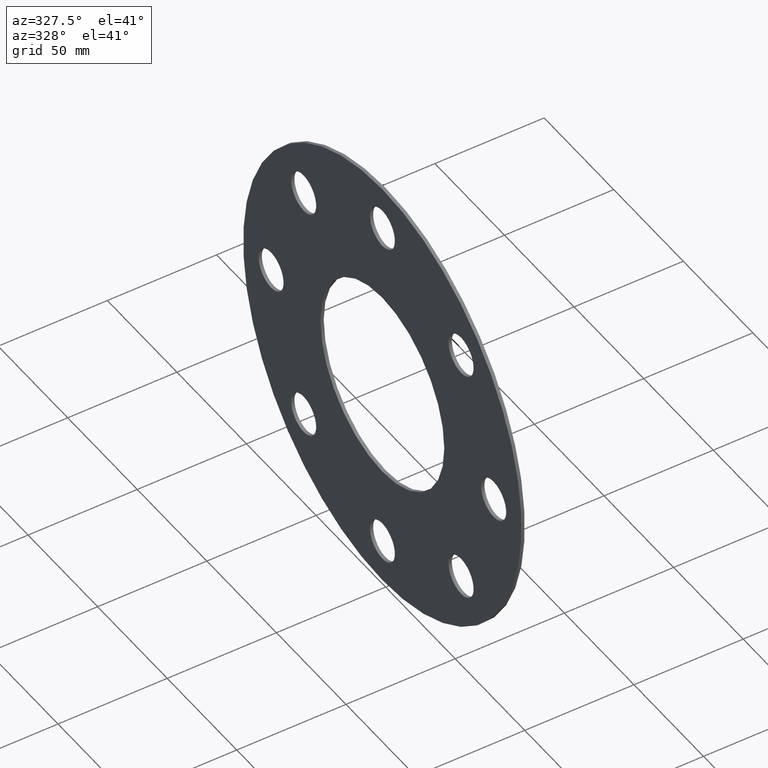
[diagram: clean part render]
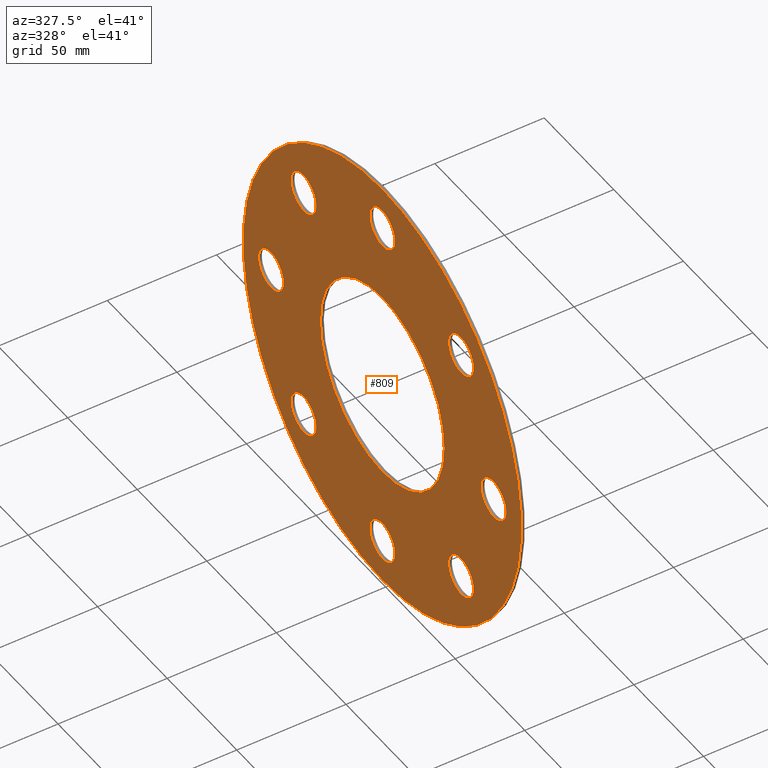
[diagram: same view with one face highlighted and labeled with its STEP entity id]
A machine part, auxiliary view. The second image highlights one B-rep face of the part: STEP entity #809.
In plain terms, the highlighted planar face has unit normal (1, 0, 0).
Its self-contained STEP definition (entity closure, byte-faithful):
#1 = ORIENTED_EDGE ( 'NONE', *, *, #417, .T. ) ;
#6 = EDGE_LOOP ( 'NONE', ( #812, #153 ) ) ;
#10 = CARTESIAN_POINT ( 'NONE',  ( -1.500000000000000000, -1.466548965701370020E-13, 89.00000000000000000 ) ) ;
#12 = EDGE_LOOP ( 'NONE', ( #265, #438 ) ) ;
#13 = EDGE_CURVE ( 'NONE', #336, #109, #191, .T. ) ;
#35 = AXIS2_PLACEMENT_3D ( 'NONE', #96, #411, #406 ) ;
#36 = CARTESIAN_POINT ( 'NONE',  ( -1.500000000000000000, -56.56854249492368325, -47.56854249492391062 ) ) ;
#42 = CARTESIAN_POINT ( 'NONE',  ( -1.500000000000000000, -56.56854249492368325, -65.56854249492391773 ) ) ;
#43 = CARTESIAN_POINT ( 'NONE',  ( -1.500000000000000000, 56.56854249492369036, 47.56854249492390352 ) ) ;
#44 = CIRCLE ( 'NONE', #229, 9.000000000000001776 ) ;
#46 = CIRCLE ( 'NONE', #157, 8.999999999999996447 ) ;
#50 = CARTESIAN_POINT ( 'NONE',  ( -1.500000000000000000, 5.449678256205721981E-15, 44.50000000000000711 ) ) ;
#55 = EDGE_CURVE ( 'NONE', #496, #161, #541, .T. ) ;
#57 = DIRECTION ( 'NONE',  ( 1.000000000000000000, 0.000000000000000000, 0.000000000000000000 ) ) ;
#59 = AXIS2_PLACEMENT_3D ( 'NONE', #558, #497, #690 ) ;
#61 = AXIS2_PLACEMENT_3D ( 'NONE', #326, #720, #320 ) ;
#66 = DIRECTION ( 'NONE',  ( 1.000000000000000000, 0.000000000000000000, 0.000000000000000000 ) ) ;
#70 = CARTESIAN_POINT ( 'NONE',  ( -1.500000000000000000, 0.000000000000000000, 0.000000000000000000 ) ) ;
#78 = CARTESIAN_POINT ( 'NONE',  ( -1.500000000000000000, 1.595945597898662527E-13, -88.99999999999998579 ) ) ;
#79 = VERTEX_POINT ( 'NONE', #358 ) ;
#85 = CARTESIAN_POINT ( 'NONE',  ( -1.500000000000000000, -1.477570786893696184E-13, 71.00000000000001421 ) ) ;
#86 = CARTESIAN_POINT ( 'NONE',  ( -1.500000000000000000, -56.56854249492391773, 56.56854249492367614 ) ) ;
#94 = CARTESIAN_POINT ( 'NONE',  ( -1.500000000000000000, 1.595945597898662527E-13, -79.99999999999998579 ) ) ;
#96 = CARTESIAN_POINT ( 'NONE',  ( -1.500000000000000000, 0.000000000000000000, 0.000000000000000000 ) ) ;
#101 = DIRECTION ( 'NONE',  ( 0.000000000000000000, 0.000000000000000000, -1.000000000000000000 ) ) ;
#109 = VERTEX_POINT ( 'NONE', #235 ) ;
#126 = DIRECTION ( 'NONE',  ( 0.000000000000000000, 0.000000000000000000, -1.000000000000000000 ) ) ;
#128 = VERTEX_POINT ( 'NONE', #50 ) ;
#134 = FACE_BOUND ( 'NONE', #518, .T. ) ;
#136 = VERTEX_POINT ( 'NONE', #175 ) ;
#138 = DIRECTION ( 'NONE',  ( 0.000000000000000000, 0.000000000000000000, -1.000000000000000000 ) ) ;
#141 = DIRECTION ( 'NONE',  ( 0.000000000000000000, 0.000000000000000000, -1.000000000000000000 ) ) ;
#145 = AXIS2_PLACEMENT_3D ( 'NONE', #354, #546, #101 ) ;
#147 = FACE_BOUND ( 'NONE', #12, .T. ) ;
#153 = ORIENTED_EDGE ( 'NONE', *, *, #494, .T. ) ;
#157 = AXIS2_PLACEMENT_3D ( 'NONE', #397, #572, #141 ) ;
#159 = EDGE_CURVE ( 'NONE', #487, #418, #295, .T. ) ;
#160 = DIRECTION ( 'NONE',  ( 0.000000000000000000, 0.000000000000000000, -1.000000000000000000 ) ) ;
#161 = VERTEX_POINT ( 'NONE', #43 ) ;
#167 = DIRECTION ( 'NONE',  ( 0.000000000000000000, 0.000000000000000000, -1.000000000000000000 ) ) ;
#168 = VERTEX_POINT ( 'NONE', #491 ) ;
#173 = DIRECTION ( 'NONE',  ( 0.000000000000000000, 0.000000000000000000, -1.000000000000000000 ) ) ;
#175 = CARTESIAN_POINT ( 'NONE',  ( -1.500000000000000000, 56.56854249492391062, -47.56854249492367614 ) ) ;
#177 = DIRECTION ( 'NONE',  ( 1.000000000000000000, 0.000000000000000000, 0.000000000000000000 ) ) ;
#191 = CIRCLE ( 'NONE', #650, 8.999999999999994671 ) ;
#193 = CIRCLE ( 'NONE', #408, 100.0000000000000000 ) ;
#196 = ORIENTED_EDGE ( 'NONE', *, *, #204, .T. ) ;
#200 = FACE_BOUND ( 'NONE', #284, .T. ) ;
#202 = ORIENTED_EDGE ( 'NONE', *, *, #583, .T. ) ;
#204 = EDGE_CURVE ( 'NONE', #109, #336, #243, .T. ) ;
#206 = AXIS2_PLACEMENT_3D ( 'NONE', #493, #429, #703 ) ;
#208 = FACE_BOUND ( 'NONE', #244, .T. ) ;
#213 = VERTEX_POINT ( 'NONE', #301 ) ;
#224 = DIRECTION ( 'NONE',  ( 0.000000000000000000, 0.000000000000000000, -1.000000000000000000 ) ) ;
#229 = AXIS2_PLACEMENT_3D ( 'NONE', #86, #718, #655 ) ;
#231 = DIRECTION ( 'NONE',  ( 0.000000000000000000, 0.000000000000000000, -1.000000000000000000 ) ) ;
#235 = CARTESIAN_POINT ( 'NONE',  ( -1.500000000000000000, 1.606967419090988690E-13, -71.00000000000000000 ) ) ;
#243 = CIRCLE ( 'NONE', #723, 8.999999999999994671 ) ;
#244 = EDGE_LOOP ( 'NONE', ( #202, #657 ) ) ;
#251 = DIRECTION ( 'NONE',  ( 0.000000000000000000, 0.000000000000000000, -1.000000000000000000 ) ) ;
#255 = FACE_BOUND ( 'NONE', #419, .T. ) ;
#257 = EDGE_CURVE ( 'NONE', #660, #168, #44, .T. ) ;
#265 = ORIENTED_EDGE ( 'NONE', *, *, #721, .T. ) ;
#266 = FACE_BOUND ( 'NONE', #6, .T. ) ;
#267 = AXIS2_PLACEMENT_3D ( 'NONE', #750, #499, #167 ) ;
#268 = AXIS2_PLACEMENT_3D ( 'NONE', #770, #766, #570 ) ;
#270 = CIRCLE ( 'NONE', #754, 8.999999999999994671 ) ;
#272 = DIRECTION ( 'NONE',  ( 1.000000000000000000, 0.000000000000000000, 0.000000000000000000 ) ) ;
#278 = CARTESIAN_POINT ( 'NONE',  ( -1.500000000000000000, 56.56854249492369036, 65.56854249492391773 ) ) ;
#283 = AXIS2_PLACEMENT_3D ( 'NONE', #642, #439, #126 ) ;
#284 = EDGE_LOOP ( 'NONE', ( #669, #514 ) ) ;
#295 = CIRCLE ( 'NONE', #267, 9.000000000000001776 ) ;
#296 = CARTESIAN_POINT ( 'NONE',  ( -1.500000000000000000, 1.595945597898662527E-13, -79.99999999999998579 ) ) ;
#297 = CIRCLE ( 'NONE', #710, 8.999999999999996447 ) ;
#301 = CARTESIAN_POINT ( 'NONE',  ( -1.500000000000000000, 1.224646799147353217E-14, 100.0000000000000000 ) ) ;
#304 = VERTEX_POINT ( 'NONE', #663 ) ;
#305 = CARTESIAN_POINT ( 'NONE',  ( -1.500000000000000000, 0.000000000000000000, 0.000000000000000000 ) ) ;
#307 = VERTEX_POINT ( 'NONE', #799 ) ;
#308 = AXIS2_PLACEMENT_3D ( 'NONE', #472, #609, #605 ) ;
#309 = CARTESIAN_POINT ( 'NONE',  ( -1.500000000000000000, -1.477570786893696184E-13, 80.00000000000000000 ) ) ;
#316 = FACE_BOUND ( 'NONE', #561, .T. ) ;
#320 = DIRECTION ( 'NONE',  ( 0.000000000000000000, 0.000000000000000000, -1.000000000000000000 ) ) ;
#325 = EDGE_LOOP ( 'NONE', ( #611, #365 ) ) ;
#326 = CARTESIAN_POINT ( 'NONE',  ( -1.500000000000000000, -1.477570786893696184E-13, 80.00000000000000000 ) ) ;
#336 = VERTEX_POINT ( 'NONE', #78 ) ;
#340 = DIRECTION ( 'NONE',  ( 1.000000000000000000, 0.000000000000000000, 0.000000000000000000 ) ) ;
#349 = CIRCLE ( 'NONE', #308, 44.50000000000000711 ) ;
#354 = CARTESIAN_POINT ( 'NONE',  ( -1.500000000000000000, -56.56854249492391773, 56.56854249492367614 ) ) ;
#357 = CARTESIAN_POINT ( 'NONE',  ( -1.500000000000000000, -56.56854249492368325, -56.56854249492391062 ) ) ;
#358 = CARTESIAN_POINT ( 'NONE',  ( -1.500000000000000000, -80.00000000000000000, -9.000000000000161648 ) ) ;
#359 = VERTEX_POINT ( 'NONE', #451 ) ;
#363 = CIRCLE ( 'NONE', #682, 9.000000000000007105 ) ;
#365 = ORIENTED_EDGE ( 'NONE', *, *, #829, .T. ) ;
#373 = DIRECTION ( 'NONE',  ( 0.000000000000000000, 0.000000000000000000, -1.000000000000000000 ) ) ;
#380 = CIRCLE ( 'NONE', #35, 44.50000000000000711 ) ;
#384 = FACE_BOUND ( 'NONE', #441, .T. ) ;
#394 = CIRCLE ( 'NONE', #283, 100.0000000000000000 ) ;
#397 = CARTESIAN_POINT ( 'NONE',  ( -1.500000000000000000, -80.00000000000000000, -1.663166132592763802E-13 ) ) ;
#403 = EDGE_CURVE ( 'NONE', #557, #359, #503, .T. ) ;
#406 = DIRECTION ( 'NONE',  ( 0.000000000000000000, 0.000000000000000000, -1.000000000000000000 ) ) ;
#408 = AXIS2_PLACEMENT_3D ( 'NONE', #305, #831, #251 ) ;
#410 = DIRECTION ( 'NONE',  ( 1.000000000000000000, 0.000000000000000000, 0.000000000000000000 ) ) ;
#411 = DIRECTION ( 'NONE',  ( 1.000000000000000000, 0.000000000000000000, 0.000000000000000000 ) ) ;
#417 = EDGE_CURVE ( 'NONE', #418, #487, #724, .T. ) ;
#418 = VERTEX_POINT ( 'NONE', #36 ) ;
#419 = EDGE_LOOP ( 'NONE', ( #797, #1 ) ) ;
#429 = DIRECTION ( 'NONE',  ( 1.000000000000000000, 0.000000000000000000, 0.000000000000000000 ) ) ;
#436 = CIRCLE ( 'NONE', #145, 9.000000000000001776 ) ;
#438 = ORIENTED_EDGE ( 'NONE', *, *, #587, .T. ) ;
#439 = DIRECTION ( 'NONE',  ( 1.000000000000000000, 0.000000000000000000, 0.000000000000000000 ) ) ;
#441 = EDGE_LOOP ( 'NONE', ( #603, #618 ) ) ;
#442 = CARTESIAN_POINT ( 'NONE',  ( -1.500000000000000000, 80.00000000000000000, -8.999999999999840128 ) ) ;
#451 = CARTESIAN_POINT ( 'NONE',  ( -1.500000000000000000, 80.00000000000000000, 9.000000000000145661 ) ) ;
#452 = EDGE_CURVE ( 'NONE', #128, #307, #349, .T. ) ;
#457 = CARTESIAN_POINT ( 'NONE',  ( -1.500000000000000000, -80.00000000000000000, -1.663166132592763802E-13 ) ) ;
#466 = DIRECTION ( 'NONE',  ( 1.000000000000000000, 0.000000000000000000, 0.000000000000000000 ) ) ;
#472 = CARTESIAN_POINT ( 'NONE',  ( -1.500000000000000000, 0.000000000000000000, 0.000000000000000000 ) ) ;
#473 = EDGE_LOOP ( 'NONE', ( #630, #715 ) ) ;
#484 = DIRECTION ( 'NONE',  ( 0.000000000000000000, 0.000000000000000000, -1.000000000000000000 ) ) ;
#487 = VERTEX_POINT ( 'NONE', #42 ) ;
#490 = AXIS2_PLACEMENT_3D ( 'NONE', #70, #466, #730 ) ;
#491 = CARTESIAN_POINT ( 'NONE',  ( -1.500000000000000000, -56.56854249492391773, 65.56854249492367614 ) ) ;
#493 = CARTESIAN_POINT ( 'NONE',  ( -1.500000000000000000, 56.56854249492369036, 56.56854249492390352 ) ) ;
#494 = EDGE_CURVE ( 'NONE', #168, #660, #436, .T. ) ;
#496 = VERTEX_POINT ( 'NONE', #278 ) ;
#497 = DIRECTION ( 'NONE',  ( 1.000000000000000000, 0.000000000000000000, 0.000000000000000000 ) ) ;
#499 = DIRECTION ( 'NONE',  ( 1.000000000000000000, 0.000000000000000000, 0.000000000000000000 ) ) ;
#503 = CIRCLE ( 'NONE', #817, 8.999999999999992895 ) ;
#514 = ORIENTED_EDGE ( 'NONE', *, *, #452, .T. ) ;
#515 = PLANE ( 'NONE',  #490 ) ;
#518 = EDGE_LOOP ( 'NONE', ( #801, #196 ) ) ;
#519 = CARTESIAN_POINT ( 'NONE',  ( -1.500000000000000000, 0.000000000000000000, -100.0000000000000000 ) ) ;
#526 = CIRCLE ( 'NONE', #59, 9.000000000000007105 ) ;
#530 = ORIENTED_EDGE ( 'NONE', *, *, #533, .T. ) ;
#533 = EDGE_CURVE ( 'NONE', #161, #496, #768, .T. ) ;
#538 = DIRECTION ( 'NONE',  ( 0.000000000000000000, 0.000000000000000000, -1.000000000000000000 ) ) ;
#541 = CIRCLE ( 'NONE', #637, 9.000000000000001776 ) ;
#546 = DIRECTION ( 'NONE',  ( 1.000000000000000000, 0.000000000000000000, 0.000000000000000000 ) ) ;
#557 = VERTEX_POINT ( 'NONE', #442 ) ;
#558 = CARTESIAN_POINT ( 'NONE',  ( -1.500000000000000000, 56.56854249492391062, -56.56854249492368325 ) ) ;
#561 = EDGE_LOOP ( 'NONE', ( #530, #686 ) ) ;
#563 = EDGE_CURVE ( 'NONE', #136, #584, #363, .T. ) ;
#565 = CARTESIAN_POINT ( 'NONE',  ( -1.500000000000000000, 56.56854249492391062, -56.56854249492368325 ) ) ;
#570 = DIRECTION ( 'NONE',  ( 0.000000000000000000, 0.000000000000000000, -1.000000000000000000 ) ) ;
#572 = DIRECTION ( 'NONE',  ( 1.000000000000000000, 0.000000000000000000, 0.000000000000000000 ) ) ;
#583 = EDGE_CURVE ( 'NONE', #584, #136, #526, .T. ) ;
#584 = VERTEX_POINT ( 'NONE', #758 ) ;
#587 = EDGE_CURVE ( 'NONE', #743, #747, #270, .T. ) ;
#602 = EDGE_CURVE ( 'NONE', #359, #557, #697, .T. ) ;
#603 = ORIENTED_EDGE ( 'NONE', *, *, #403, .T. ) ;
#605 = DIRECTION ( 'NONE',  ( 0.000000000000000000, 0.000000000000000000, -1.000000000000000000 ) ) ;
#608 = AXIS2_PLACEMENT_3D ( 'NONE', #357, #802, #160 ) ;
#609 = DIRECTION ( 'NONE',  ( 1.000000000000000000, 0.000000000000000000, 0.000000000000000000 ) ) ;
#611 = ORIENTED_EDGE ( 'NONE', *, *, #694, .T. ) ;
#618 = ORIENTED_EDGE ( 'NONE', *, *, #602, .T. ) ;
#621 = EDGE_CURVE ( 'NONE', #765, #213, #394, .T. ) ;
#629 = DIRECTION ( 'NONE',  ( 1.000000000000000000, 0.000000000000000000, 0.000000000000000000 ) ) ;
#630 = ORIENTED_EDGE ( 'NONE', *, *, #621, .F. ) ;
#637 = AXIS2_PLACEMENT_3D ( 'NONE', #737, #410, #538 ) ;
#642 = CARTESIAN_POINT ( 'NONE',  ( -1.500000000000000000, 0.000000000000000000, 0.000000000000000000 ) ) ;
#650 = AXIS2_PLACEMENT_3D ( 'NONE', #94, #272, #484 ) ;
#651 = CIRCLE ( 'NONE', #61, 8.999999999999994671 ) ;
#655 = DIRECTION ( 'NONE',  ( 0.000000000000000000, 0.000000000000000000, -1.000000000000000000 ) ) ;
#657 = ORIENTED_EDGE ( 'NONE', *, *, #563, .T. ) ;
#660 = VERTEX_POINT ( 'NONE', #772 ) ;
#663 = CARTESIAN_POINT ( 'NONE',  ( -1.500000000000000000, -80.00000000000000000, 8.999999999999829470 ) ) ;
#669 = ORIENTED_EDGE ( 'NONE', *, *, #836, .T. ) ;
#677 = CARTESIAN_POINT ( 'NONE',  ( -1.500000000000000000, 80.00000000000000000, 1.526556658859590243E-13 ) ) ;
#678 = EDGE_CURVE ( 'NONE', #213, #765, #193, .T. ) ;
#682 = AXIS2_PLACEMENT_3D ( 'NONE', #565, #177, #373 ) ;
#686 = ORIENTED_EDGE ( 'NONE', *, *, #55, .T. ) ;
#690 = DIRECTION ( 'NONE',  ( 0.000000000000000000, 0.000000000000000000, -1.000000000000000000 ) ) ;
#694 = EDGE_CURVE ( 'NONE', #79, #304, #46, .T. ) ;
#697 = CIRCLE ( 'NONE', #268, 8.999999999999992895 ) ;
#703 = DIRECTION ( 'NONE',  ( 0.000000000000000000, 0.000000000000000000, -1.000000000000000000 ) ) ;
#710 = AXIS2_PLACEMENT_3D ( 'NONE', #457, #66, #138 ) ;
#715 = ORIENTED_EDGE ( 'NONE', *, *, #678, .F. ) ;
#717 = FACE_OUTER_BOUND ( 'NONE', #473, .T. ) ;
#718 = DIRECTION ( 'NONE',  ( 1.000000000000000000, 0.000000000000000000, 0.000000000000000000 ) ) ;
#720 = DIRECTION ( 'NONE',  ( 1.000000000000000000, 0.000000000000000000, 0.000000000000000000 ) ) ;
#721 = EDGE_CURVE ( 'NONE', #747, #743, #651, .T. ) ;
#723 = AXIS2_PLACEMENT_3D ( 'NONE', #296, #629, #231 ) ;
#724 = CIRCLE ( 'NONE', #608, 9.000000000000001776 ) ;
#730 = DIRECTION ( 'NONE',  ( 0.000000000000000000, 0.000000000000000000, -1.000000000000000000 ) ) ;
#737 = CARTESIAN_POINT ( 'NONE',  ( -1.500000000000000000, 56.56854249492369036, 56.56854249492390352 ) ) ;
#743 = VERTEX_POINT ( 'NONE', #10 ) ;
#747 = VERTEX_POINT ( 'NONE', #85 ) ;
#750 = CARTESIAN_POINT ( 'NONE',  ( -1.500000000000000000, -56.56854249492368325, -56.56854249492391062 ) ) ;
#754 = AXIS2_PLACEMENT_3D ( 'NONE', #309, #57, #173 ) ;
#758 = CARTESIAN_POINT ( 'NONE',  ( -1.500000000000000000, 56.56854249492391062, -65.56854249492369036 ) ) ;
#765 = VERTEX_POINT ( 'NONE', #519 ) ;
#766 = DIRECTION ( 'NONE',  ( 1.000000000000000000, 0.000000000000000000, 0.000000000000000000 ) ) ;
#768 = CIRCLE ( 'NONE', #206, 9.000000000000001776 ) ;
#770 = CARTESIAN_POINT ( 'NONE',  ( -1.500000000000000000, 80.00000000000000000, 1.526556658859590243E-13 ) ) ;
#772 = CARTESIAN_POINT ( 'NONE',  ( -1.500000000000000000, -56.56854249492391773, 47.56854249492367614 ) ) ;
#795 = FACE_BOUND ( 'NONE', #325, .T. ) ;
#797 = ORIENTED_EDGE ( 'NONE', *, *, #159, .T. ) ;
#799 = CARTESIAN_POINT ( 'NONE',  ( -1.500000000000000000, 0.000000000000000000, -44.50000000000000711 ) ) ;
#801 = ORIENTED_EDGE ( 'NONE', *, *, #13, .T. ) ;
#802 = DIRECTION ( 'NONE',  ( 1.000000000000000000, 0.000000000000000000, 0.000000000000000000 ) ) ;
#809 = ADVANCED_FACE ( 'NONE', ( #147, #266, #795, #134, #208, #384, #255, #200, #316, #717 ), #515, .F. ) ;
#812 = ORIENTED_EDGE ( 'NONE', *, *, #257, .T. ) ;
#817 = AXIS2_PLACEMENT_3D ( 'NONE', #677, #340, #224 ) ;
#829 = EDGE_CURVE ( 'NONE', #304, #79, #297, .T. ) ;
#831 = DIRECTION ( 'NONE',  ( 1.000000000000000000, 0.000000000000000000, 0.000000000000000000 ) ) ;
#836 = EDGE_CURVE ( 'NONE', #307, #128, #380, .T. ) ;